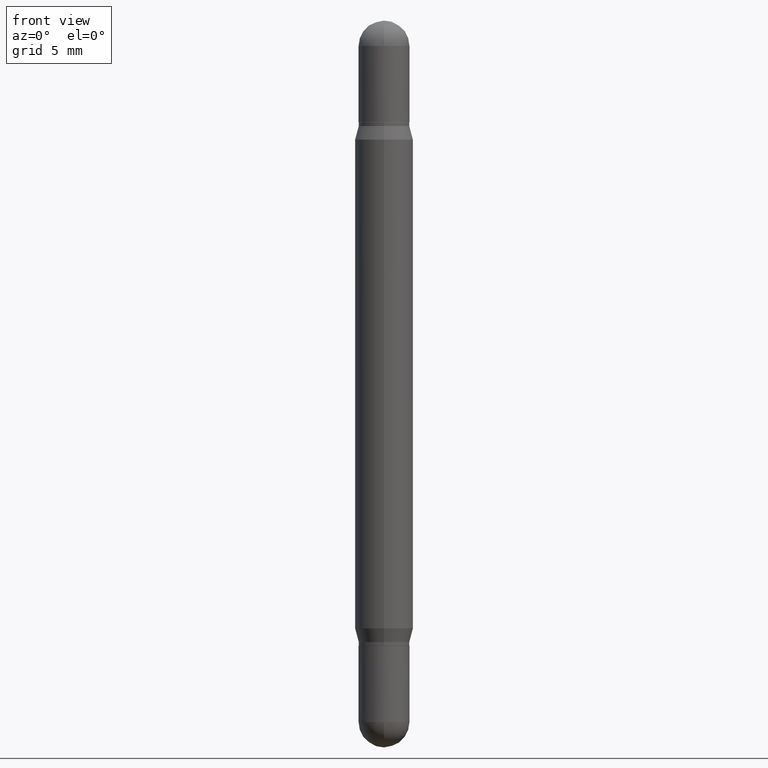
[diagram: clean part render]
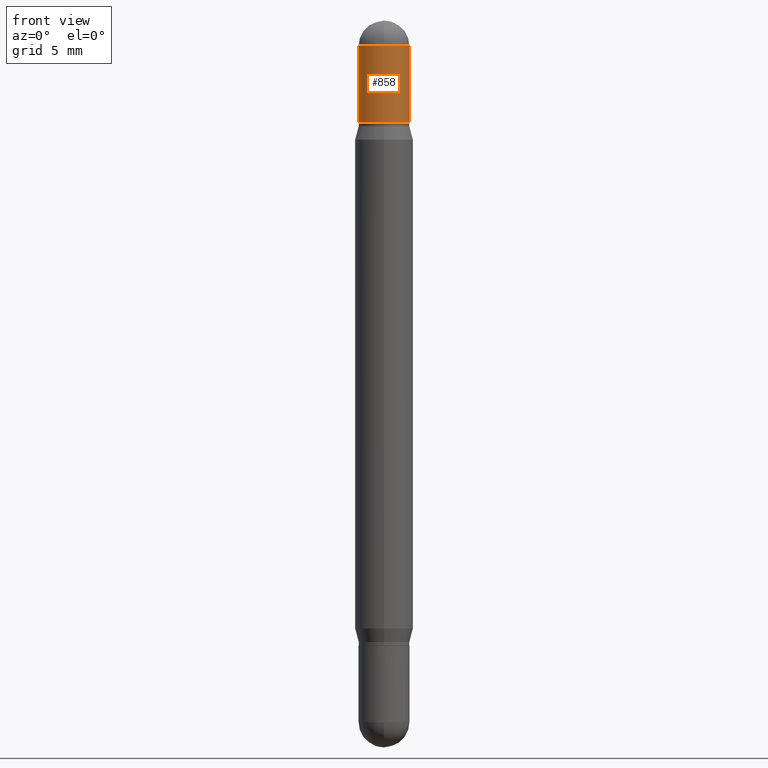
[diagram: same view with one face highlighted and labeled with its STEP entity id]
A machine part, front view. The second image highlights one B-rep face of the part: STEP entity #858.
In plain terms, the highlighted cylindrical surface (edge-blend (fillet) strip) has radius 1.7501 mm, axis along (-0, -0, -1).
Its self-contained STEP definition (entity closure, byte-faithful):
#6 = VERTEX_POINT ( 'NONE', #720 ) ;
#29 = VERTEX_POINT ( 'NONE', #895 ) ;
#37 = EDGE_LOOP ( 'NONE', ( #602, #511, #279, #674, #1093 ) ) ;
#44 = CIRCLE ( 'NONE', #677, 0.06890000000000007230 ) ;
#71 = CARTESIAN_POINT ( 'NONE',  ( -0.06890000000000007230, -1.383552485239108735E-16, -0.2756000000000001782 ) ) ;
#106 = AXIS2_PLACEMENT_3D ( 'NONE', #1062, #817, #734 ) ;
#120 = AXIS2_PLACEMENT_3D ( 'NONE', #403, #737, #1105 ) ;
#140 = LINE ( 'NONE', #487, #558 ) ;
#201 = DIRECTION ( 'NONE',  ( 1.000000000000000000, -6.982962677686265922E-15, 0.000000000000000000 ) ) ;
#222 = DIRECTION ( 'NONE',  ( -2.445468806185136877E-29, -3.479614466977828648E-15, -1.000000000000000000 ) ) ;
#255 = EDGE_CURVE ( 'NONE', #673, #29, #44, .T. ) ;
#260 = CARTESIAN_POINT ( 'NONE',  ( 0.06890000000000007230, -1.451787844225113236E-15, -0.2756000000000001782 ) ) ;
#279 = ORIENTED_EDGE ( 'NONE', *, *, #741, .T. ) ;
#306 = DIRECTION ( 'NONE',  ( 1.000000000000000000, -6.982962677686273021E-15, 0.000000000000000000 ) ) ;
#401 = CYLINDRICAL_SURFACE ( 'NONE', #997, 0.06890000000000007230 ) ;
#403 = CARTESIAN_POINT ( 'NONE',  ( 4.139934141990817236E-29, -9.706617157325289063E-16, -0.2756000000000001782 ) ) ;
#434 = VERTEX_POINT ( 'NONE', #71 ) ;
#487 = CARTESIAN_POINT ( 'NONE',  ( 0.06890000000000007230, -7.342427175371877898E-15, -1.968500000000000139 ) ) ;
#511 = ORIENTED_EDGE ( 'NONE', *, *, #888, .T. ) ;
#552 = DIRECTION ( 'NONE',  ( 2.445468806185136597E-29, 3.479614466977828254E-15, 1.000000000000000000 ) ) ;
#558 = VECTOR ( 'NONE', #653, 39.37007874015748143 ) ;
#602 = ORIENTED_EDGE ( 'NONE', *, *, #255, .F. ) ;
#631 = CARTESIAN_POINT ( 'NONE',  ( 4.645412544229285965E-29, -2.514254054082095494E-16, -0.06889999999999990576 ) ) ;
#648 = CARTESIAN_POINT ( 'NONE',  ( 0.000000000000000000, -6.861301046879293370E-15, -1.968500000000000139 ) ) ;
#653 = DIRECTION ( 'NONE',  ( -2.445468806185136877E-29, -3.479614466977828648E-15, -1.000000000000000000 ) ) ;
#671 = EDGE_CURVE ( 'NONE', #6, #1077, #140, .T. ) ;
#673 = VERTEX_POINT ( 'NONE', #831 ) ;
#674 = ORIENTED_EDGE ( 'NONE', *, *, #671, .F. ) ;
#677 = AXIS2_PLACEMENT_3D ( 'NONE', #631, #552, #201 ) ;
#682 = VECTOR ( 'NONE', #222, 39.37007874015748143 ) ;
#720 = CARTESIAN_POINT ( 'NONE',  ( 0.06890000000000008618, -1.092169689062953952E-15, -0.06889999999999990576 ) ) ;
#726 = LINE ( 'NONE', #1075, #682 ) ;
#734 = DIRECTION ( 'NONE',  ( 1.000000000000000000, -6.982962677686265922E-15, 0.000000000000000000 ) ) ;
#737 = DIRECTION ( 'NONE',  ( 2.445468806185136597E-29, 3.479614466977828254E-15, 1.000000000000000000 ) ) ;
#739 = FACE_OUTER_BOUND ( 'NONE', #37, .T. ) ;
#741 = EDGE_CURVE ( 'NONE', #434, #1077, #807, .T. ) ;
#791 = CIRCLE ( 'NONE', #106, 0.06890000000000007230 ) ;
#807 = CIRCLE ( 'NONE', #120, 0.06890000000000007230 ) ;
#817 = DIRECTION ( 'NONE',  ( 2.445468806185136597E-29, 3.479614466977828254E-15, 1.000000000000000000 ) ) ;
#824 = EDGE_CURVE ( 'NONE', #29, #6, #791, .T. ) ;
#831 = CARTESIAN_POINT ( 'NONE',  ( -0.06890000000000008618, -1.383552485239103558E-16, -0.06889999999999990576 ) ) ;
#858 = ADVANCED_FACE ( 'NONE', ( #739 ), #401, .T. ) ;
#888 = EDGE_CURVE ( 'NONE', #673, #434, #726, .T. ) ;
#895 = CARTESIAN_POINT ( 'NONE',  ( -4.726883120464119841E-16, -0.06890000000000023883, -0.06889999999999966984 ) ) ;
#997 = AXIS2_PLACEMENT_3D ( 'NONE', #648, #1071, #306 ) ;
#1062 = CARTESIAN_POINT ( 'NONE',  ( 4.645412544229285965E-29, -2.514254054082095494E-16, -0.06889999999999990576 ) ) ;
#1071 = DIRECTION ( 'NONE',  ( -2.445468806185136597E-29, -3.479614466977828254E-15, -1.000000000000000000 ) ) ;
#1075 = CARTESIAN_POINT ( 'NONE',  ( -0.06890000000000007230, -6.388612734832834646E-15, -1.968500000000000139 ) ) ;
#1077 = VERTEX_POINT ( 'NONE', #260 ) ;
#1093 = ORIENTED_EDGE ( 'NONE', *, *, #824, .F. ) ;
#1105 = DIRECTION ( 'NONE',  ( 1.000000000000000000, -6.982962677686265922E-15, 0.000000000000000000 ) ) ;